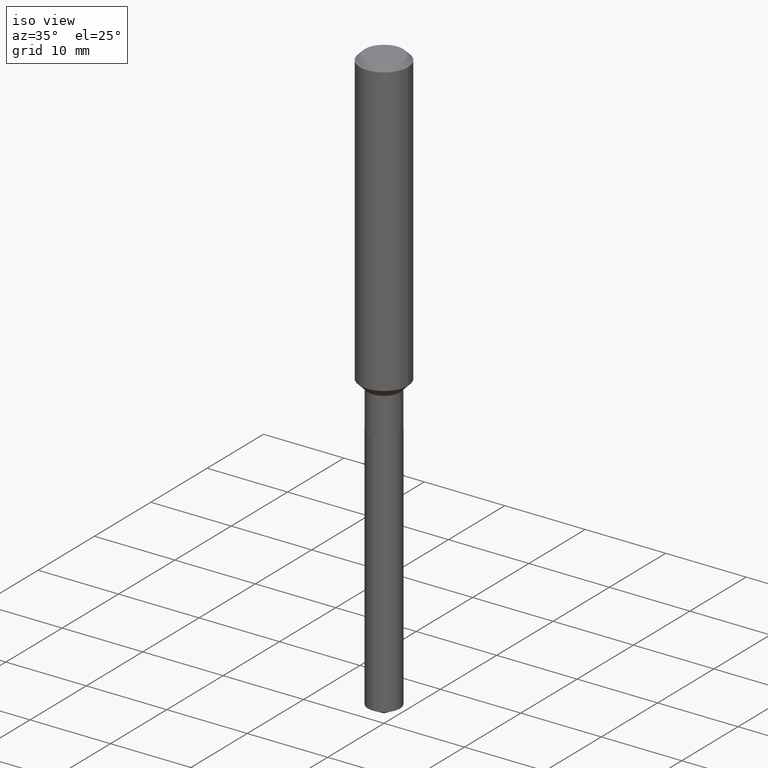
[diagram: clean part render]
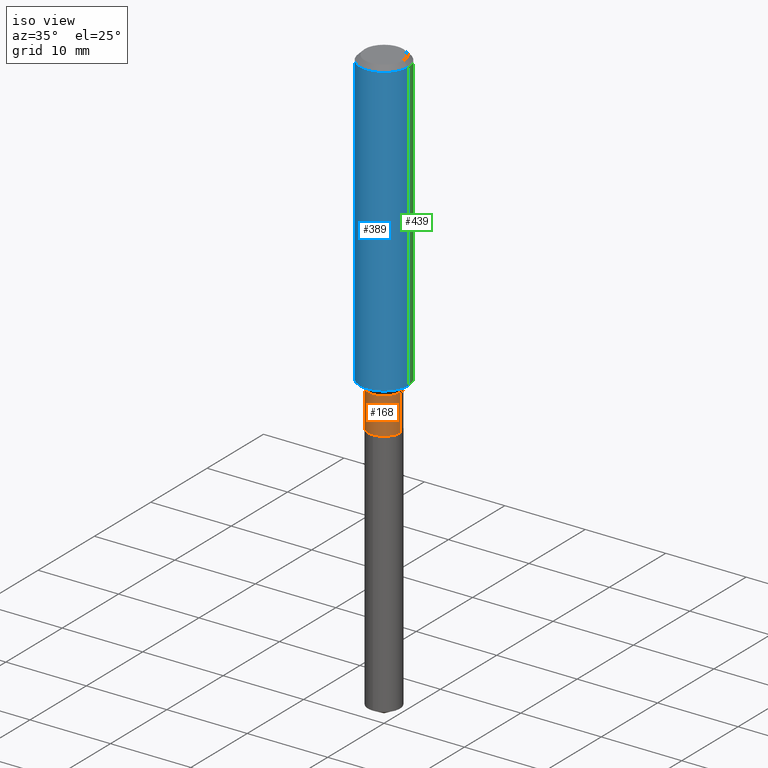
[diagram: same view with three faces highlighted in distinct colors, each labeled with its STEP entity id]
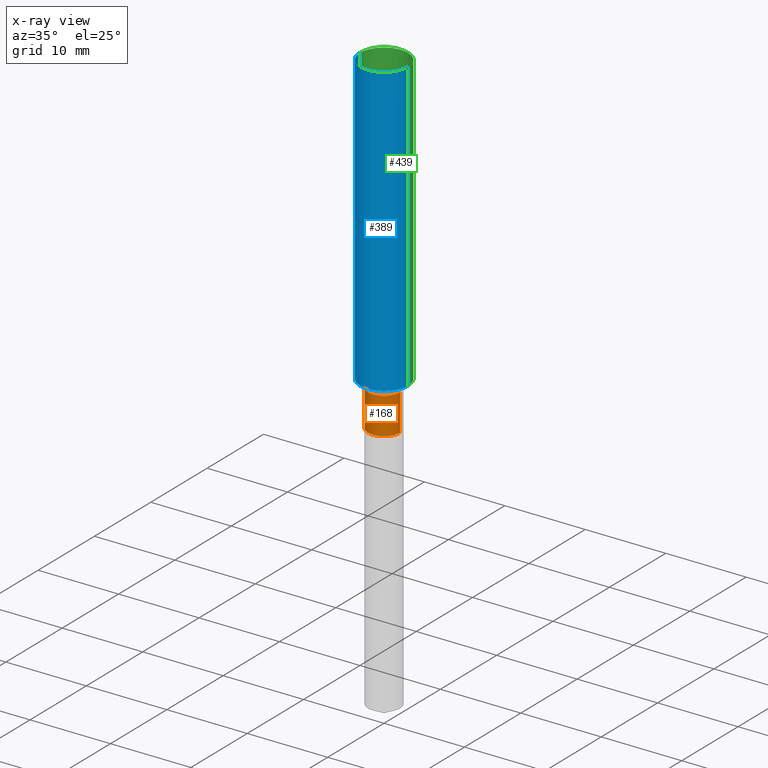
[diagram: x-ray of the same camera — body ghosted, the three highlighted faces saturated]
A machine part, iso view with three faces highlighted in distinct colors.
The next image is the same camera in x-ray (body ghosted, the three faces saturated) — at least one of them is partly hidden behind the body in this view.
Their STEP definitions:

[orange] entity #168 — the highlighted cylindrical surface (edge-blend (fillet) strip) has radius 1.9837 mm, axis along (-0, 0, 1).
#18 = EDGE_CURVE ( 'NONE', #173, #254, #191, .T. ) ;
#33 = CARTESIAN_POINT ( 'NONE',  ( 3.601197363988231369E-29, -5.141555419580415048E-15, -1.472599999999999687 ) ) ;
#64 = ORIENTED_EDGE ( 'NONE', *, *, #18, .T. ) ;
#67 = VECTOR ( 'NONE', #84, 39.37007874015748143 ) ;
#72 = EDGE_CURVE ( 'NONE', #392, #173, #235, .T. ) ;
#84 = DIRECTION ( 'NONE',  ( -2.445468806185136877E-29, 3.491481338843145188E-15, 1.000000000000000000 ) ) ;
#91 = CARTESIAN_POINT ( 'NONE',  ( 0.000000000000000000, 0.000000000000000000, 0.000000000000000000 ) ) ;
#97 = VECTOR ( 'NONE', #344, 39.37007874015748143 ) ;
#123 = CIRCLE ( 'NONE', #395, 0.07809999999999997500 ) ;
#140 = ORIENTED_EDGE ( 'NONE', *, *, #383, .F. ) ;
#148 = DIRECTION ( 'NONE',  ( 1.000000000000000000, -6.982962677686266711E-15, 0.000000000000000000 ) ) ;
#158 = ORIENTED_EDGE ( 'NONE', *, *, #238, .F. ) ;
#164 = EDGE_LOOP ( 'NONE', ( #158, #288, #64, #140 ) ) ;
#165 = CARTESIAN_POINT ( 'NONE',  ( 0.07810000000000000275, -6.312249112494520306E-15, -1.651699999999999724 ) ) ;
#168 = ADVANCED_FACE ( 'NONE', ( #203 ), #357, .T. ) ;
#173 = VERTEX_POINT ( 'NONE', #165 ) ;
#180 = DIRECTION ( 'NONE',  ( 1.000000000000000000, -6.982962677686269077E-15, 0.000000000000000000 ) ) ;
#191 = LINE ( 'NONE', #233, #97 ) ;
#203 = FACE_OUTER_BOUND ( 'NONE', #164, .T. ) ;
#220 = AXIS2_PLACEMENT_3D ( 'NONE', #458, #305, #148 ) ;
#233 = CARTESIAN_POINT ( 'NONE',  ( 0.07809999999999997500, -5.453693851272973378E-16, 3.808294061896625002E-30 ) ) ;
#235 = CIRCLE ( 'NONE', #220, 0.07810000000000000275 ) ;
#238 = EDGE_CURVE ( 'NONE', #392, #353, #468, .T. ) ;
#239 = CARTESIAN_POINT ( 'NONE',  ( 0.07809999999999997500, -5.686924804707712484E-15, -1.472599999999999687 ) ) ;
#254 = VERTEX_POINT ( 'NONE', #239 ) ;
#275 = CARTESIAN_POINT ( 'NONE',  ( -0.07809999999999997500, 5.549338766286380675E-16, -3.841688305489080574E-30 ) ) ;
#288 = ORIENTED_EDGE ( 'NONE', *, *, #72, .T. ) ;
#290 = CARTESIAN_POINT ( 'NONE',  ( -0.07810000000000000275, -4.899283696845180694E-15, -1.651699999999999724 ) ) ;
#305 = DIRECTION ( 'NONE',  ( -2.445468806185136597E-29, 3.491481338843145583E-15, 1.000000000000000000 ) ) ;
#323 = AXIS2_PLACEMENT_3D ( 'NONE', #91, #386, #431 ) ;
#344 = DIRECTION ( 'NONE',  ( -2.445468806185136877E-29, 3.491481338843145188E-15, 1.000000000000000000 ) ) ;
#353 = VERTEX_POINT ( 'NONE', #410 ) ;
#357 = CYLINDRICAL_SURFACE ( 'NONE', #323, 0.07809999999999997500 ) ;
#383 = EDGE_CURVE ( 'NONE', #353, #254, #123, .T. ) ;
#386 = DIRECTION ( 'NONE',  ( -2.445468806185136597E-29, 3.491481338843145583E-15, 1.000000000000000000 ) ) ;
#392 = VERTEX_POINT ( 'NONE', #290 ) ;
#395 = AXIS2_PLACEMENT_3D ( 'NONE', #33, #400, #180 ) ;
#400 = DIRECTION ( 'NONE',  ( -2.445468806185136597E-29, 3.491481338843145583E-15, 1.000000000000000000 ) ) ;
#410 = CARTESIAN_POINT ( 'NONE',  ( -0.07809999999999997500, -4.899283696845180694E-15, -1.472599999999999687 ) ) ;
#431 = DIRECTION ( 'NONE',  ( 1.000000000000000000, -6.982962677686267499E-15, 4.876176775795936353E-29 ) ) ;
#458 = CARTESIAN_POINT ( 'NONE',  ( 4.039180827175989564E-29, -5.766879727367222870E-15, -1.651699999999999724 ) ) ;
#468 = LINE ( 'NONE', #275, #67 ) ;

[blue] entity #389 — the highlighted cylindrical surface (edge-blend (fillet) strip) has radius 2.9997 mm, axis along (-0, 0, 1).
#23 = CIRCLE ( 'NONE', #413, 0.1180999999999999966 ) ;
#36 = DIRECTION ( 'NONE',  ( -2.445468806185136597E-29, 3.491481338843145583E-15, 1.000000000000000000 ) ) ;
#40 = VECTOR ( 'NONE', #427, 39.37007874015748143 ) ;
#56 = DIRECTION ( 'NONE',  ( 1.000000000000000000, -6.982962677686266711E-15, 4.876176775795936353E-29 ) ) ;
#59 = EDGE_CURVE ( 'NONE', #373, #178, #252, .T. ) ;
#86 = LINE ( 'NONE', #318, #40 ) ;
#98 = CARTESIAN_POINT ( 'NONE',  ( -0.1180999999999999966, -1.703031506692402969E-15, -0.02362000000000014435 ) ) ;
#100 = ORIENTED_EDGE ( 'NONE', *, *, #189, .F. ) ;
#101 = CARTESIAN_POINT ( 'NONE',  ( 0.000000000000000000, 0.000000000000000000, 0.000000000000000000 ) ) ;
#105 = ORIENTED_EDGE ( 'NONE', *, *, #269, .T. ) ;
#135 = CYLINDRICAL_SURFACE ( 'NONE', #387, 0.1181000000000000799 ) ;
#159 = CARTESIAN_POINT ( 'NONE',  ( 0.1181000000000001632, -5.826584058261438292E-15, -1.432599999999999651 ) ) ;
#178 = VERTEX_POINT ( 'NONE', #159 ) ;
#185 = LINE ( 'NONE', #299, #355 ) ;
#189 = EDGE_CURVE ( 'NONE', #332, #301, #23, .T. ) ;
#249 = CARTESIAN_POINT ( 'NONE',  ( -0.1181000000000001632, -4.162745195094008677E-15, -1.432599999999999651 ) ) ;
#252 = CIRCLE ( 'NONE', #292, 0.1181000000000001632 ) ;
#266 = DIRECTION ( 'NONE',  ( -2.445468806185136877E-29, 3.491481338843145188E-15, 1.000000000000000000 ) ) ;
#269 = EDGE_CURVE ( 'NONE', #178, #301, #86, .T. ) ;
#277 = DIRECTION ( 'NONE',  ( -2.445468806185136597E-29, 3.491481338843145583E-15, 1.000000000000000000 ) ) ;
#279 = CARTESIAN_POINT ( 'NONE',  ( 0.1180999999999999966, -9.071566814582237199E-16, -0.02362000000000014435 ) ) ;
#282 = CARTESIAN_POINT ( 'NONE',  ( 5.776197320209328408E-31, -8.246878922347560526E-17, -0.02362000000000014435 ) ) ;
#292 = AXIS2_PLACEMENT_3D ( 'NONE', #343, #36, #455 ) ;
#299 = CARTESIAN_POINT ( 'NONE',  ( -0.1181000000000000799, 8.391509709326788873E-16, -5.809262341591047988E-30 ) ) ;
#301 = VERTEX_POINT ( 'NONE', #279 ) ;
#318 = CARTESIAN_POINT ( 'NONE',  ( 0.1181000000000000799, -8.246878922347486570E-16, 5.758764772215004644E-30 ) ) ;
#332 = VERTEX_POINT ( 'NONE', #98 ) ;
#343 = CARTESIAN_POINT ( 'NONE',  ( 3.503378611740825749E-29, -5.001896166026689240E-15, -1.432599999999999651 ) ) ;
#355 = VECTOR ( 'NONE', #266, 39.37007874015748143 ) ;
#367 = FACE_OUTER_BOUND ( 'NONE', #378, .T. ) ;
#373 = VERTEX_POINT ( 'NONE', #249 ) ;
#378 = EDGE_LOOP ( 'NONE', ( #419, #407, #105, #100 ) ) ;
#387 = AXIS2_PLACEMENT_3D ( 'NONE', #101, #444, #56 ) ;
#389 = ADVANCED_FACE ( 'NONE', ( #367 ), #135, .T. ) ;
#390 = DIRECTION ( 'NONE',  ( 1.000000000000000000, -6.982962677686266711E-15, 0.000000000000000000 ) ) ;
#407 = ORIENTED_EDGE ( 'NONE', *, *, #59, .T. ) ;
#413 = AXIS2_PLACEMENT_3D ( 'NONE', #282, #277, #390 ) ;
#419 = ORIENTED_EDGE ( 'NONE', *, *, #484, .F. ) ;
#427 = DIRECTION ( 'NONE',  ( -2.445468806185136877E-29, 3.491481338843145188E-15, 1.000000000000000000 ) ) ;
#444 = DIRECTION ( 'NONE',  ( -2.445468806185136597E-29, 3.491481338843145583E-15, 1.000000000000000000 ) ) ;
#455 = DIRECTION ( 'NONE',  ( 1.000000000000000000, -6.982962677686263555E-15, 0.000000000000000000 ) ) ;
#484 = EDGE_CURVE ( 'NONE', #373, #332, #185, .T. ) ;

[green] entity #439 — the highlighted cylindrical surface (edge-blend (fillet) strip) has radius 2.9997 mm, axis along (-0, 0, 1).
#27 = DIRECTION ( 'NONE',  ( 1.000000000000000000, -6.982962677686266711E-15, 4.876176775795936353E-29 ) ) ;
#32 = AXIS2_PLACEMENT_3D ( 'NONE', #437, #325, #253 ) ;
#34 = ORIENTED_EDGE ( 'NONE', *, *, #341, .F. ) ;
#40 = VECTOR ( 'NONE', #427, 39.37007874015748143 ) ;
#63 = CARTESIAN_POINT ( 'NONE',  ( 3.503378611740825749E-29, -5.001896166026689240E-15, -1.432599999999999651 ) ) ;
#68 = CIRCLE ( 'NONE', #32, 0.1180999999999999966 ) ;
#86 = LINE ( 'NONE', #318, #40 ) ;
#98 = CARTESIAN_POINT ( 'NONE',  ( -0.1180999999999999966, -1.703031506692402969E-15, -0.02362000000000014435 ) ) ;
#127 = ORIENTED_EDGE ( 'NONE', *, *, #457, .T. ) ;
#159 = CARTESIAN_POINT ( 'NONE',  ( 0.1181000000000001632, -5.826584058261438292E-15, -1.432599999999999651 ) ) ;
#169 = CARTESIAN_POINT ( 'NONE',  ( 0.000000000000000000, 0.000000000000000000, 0.000000000000000000 ) ) ;
#178 = VERTEX_POINT ( 'NONE', #159 ) ;
#179 = AXIS2_PLACEMENT_3D ( 'NONE', #63, #217, #190 ) ;
#185 = LINE ( 'NONE', #299, #355 ) ;
#190 = DIRECTION ( 'NONE',  ( 1.000000000000000000, -6.982962677686263555E-15, 0.000000000000000000 ) ) ;
#217 = DIRECTION ( 'NONE',  ( -2.445468806185136597E-29, 3.491481338843145583E-15, 1.000000000000000000 ) ) ;
#236 = CIRCLE ( 'NONE', #179, 0.1181000000000001632 ) ;
#244 = ORIENTED_EDGE ( 'NONE', *, *, #269, .F. ) ;
#249 = CARTESIAN_POINT ( 'NONE',  ( -0.1181000000000001632, -4.162745195094008677E-15, -1.432599999999999651 ) ) ;
#253 = DIRECTION ( 'NONE',  ( 1.000000000000000000, -6.982962677686266711E-15, 0.000000000000000000 ) ) ;
#266 = DIRECTION ( 'NONE',  ( -2.445468806185136877E-29, 3.491481338843145188E-15, 1.000000000000000000 ) ) ;
#269 = EDGE_CURVE ( 'NONE', #178, #301, #86, .T. ) ;
#278 = ORIENTED_EDGE ( 'NONE', *, *, #484, .T. ) ;
#279 = CARTESIAN_POINT ( 'NONE',  ( 0.1180999999999999966, -9.071566814582237199E-16, -0.02362000000000014435 ) ) ;
#294 = EDGE_LOOP ( 'NONE', ( #127, #278, #34, #244 ) ) ;
#299 = CARTESIAN_POINT ( 'NONE',  ( -0.1181000000000000799, 8.391509709326788873E-16, -5.809262341591047988E-30 ) ) ;
#301 = VERTEX_POINT ( 'NONE', #279 ) ;
#318 = CARTESIAN_POINT ( 'NONE',  ( 0.1181000000000000799, -8.246878922347486570E-16, 5.758764772215004644E-30 ) ) ;
#325 = DIRECTION ( 'NONE',  ( -2.445468806185136597E-29, 3.491481338843145583E-15, 1.000000000000000000 ) ) ;
#332 = VERTEX_POINT ( 'NONE', #98 ) ;
#341 = EDGE_CURVE ( 'NONE', #301, #332, #68, .T. ) ;
#355 = VECTOR ( 'NONE', #266, 39.37007874015748143 ) ;
#364 = FACE_OUTER_BOUND ( 'NONE', #294, .T. ) ;
#373 = VERTEX_POINT ( 'NONE', #249 ) ;
#404 = AXIS2_PLACEMENT_3D ( 'NONE', #169, #436, #27 ) ;
#427 = DIRECTION ( 'NONE',  ( -2.445468806185136877E-29, 3.491481338843145188E-15, 1.000000000000000000 ) ) ;
#436 = DIRECTION ( 'NONE',  ( -2.445468806185136597E-29, 3.491481338843145583E-15, 1.000000000000000000 ) ) ;
#437 = CARTESIAN_POINT ( 'NONE',  ( 5.776197320209328408E-31, -8.246878922347560526E-17, -0.02362000000000014435 ) ) ;
#439 = ADVANCED_FACE ( 'NONE', ( #364 ), #481, .T. ) ;
#457 = EDGE_CURVE ( 'NONE', #178, #373, #236, .T. ) ;
#481 = CYLINDRICAL_SURFACE ( 'NONE', #404, 0.1181000000000000799 ) ;
#484 = EDGE_CURVE ( 'NONE', #373, #332, #185, .T. ) ;